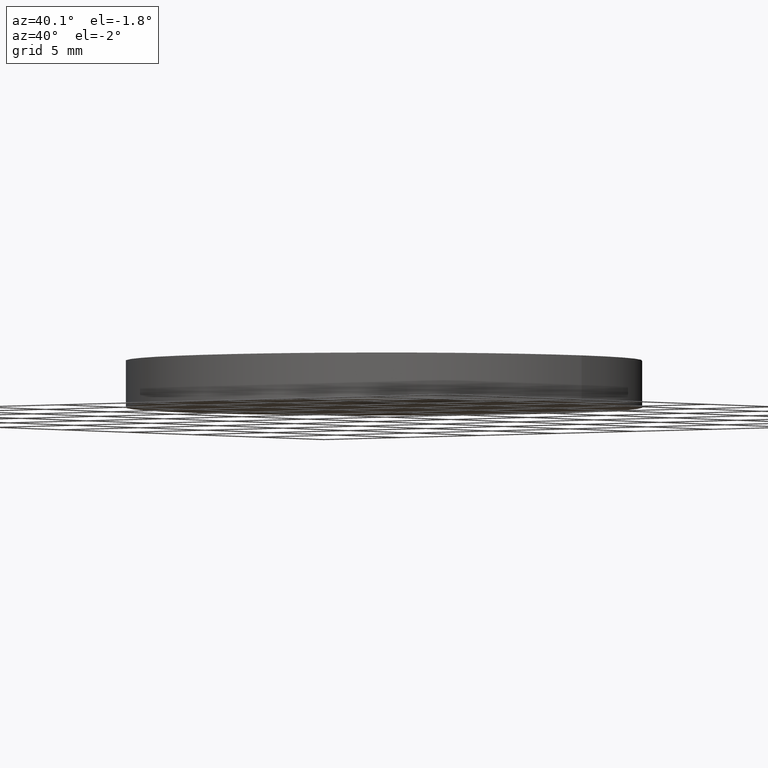
[diagram: clean part render]
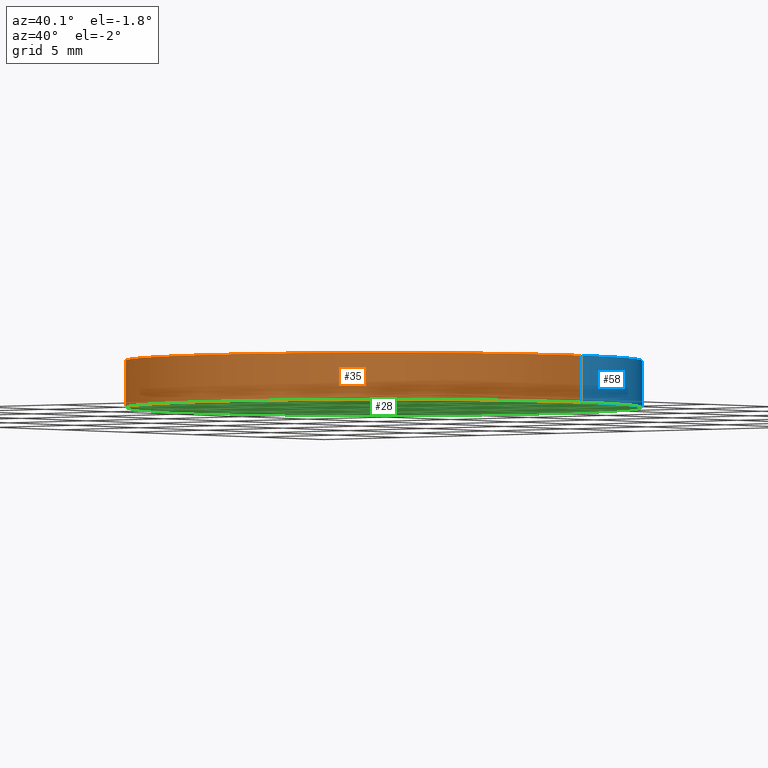
[diagram: same view with three faces highlighted in distinct colors, each labeled with its STEP entity id]
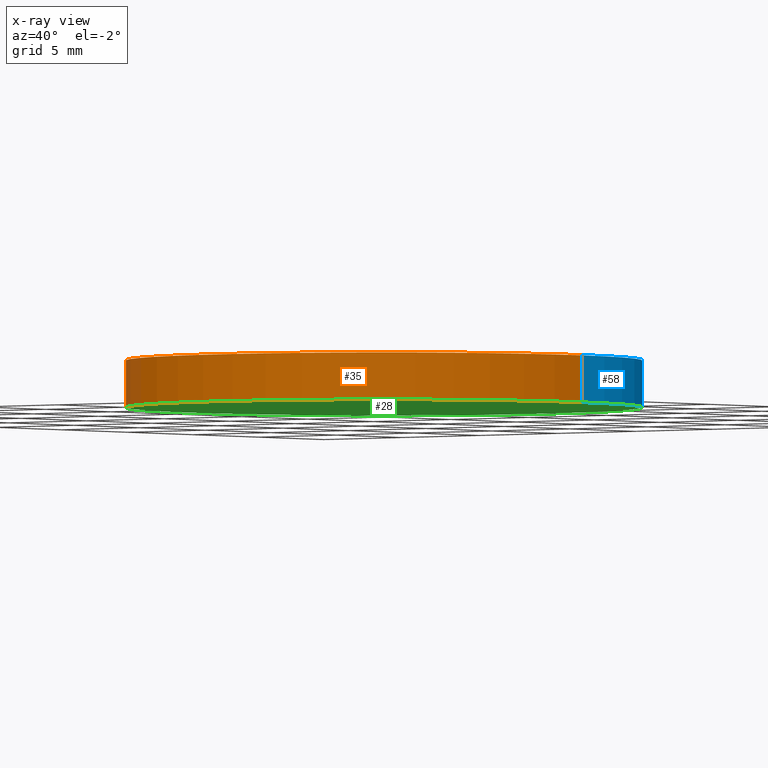
[diagram: x-ray of the same camera — body ghosted, the three highlighted faces saturated]
A machine part, auxiliary view with three faces highlighted in distinct colors.
The next image is the same camera in x-ray (body ghosted, the three faces saturated) — at least one of them is partly hidden behind the body in this view.
Their STEP definitions:

[orange] entity #35 — the highlighted cylindrical surface (partial cylindrical patch) has radius 12.7 mm, axis along (-0, -0, -1).
#1 = CIRCLE ( 'NONE', #56, 12.70000000000000300 ) ;
#2 = EDGE_CURVE ( 'NONE', #26, #101, #76, .T. ) ;
#6 = DIRECTION ( 'NONE',  ( 0.0000000000000000000, 0.0000000000000000000, 1.000000000000000000 ) ) ;
#12 = ORIENTED_EDGE ( 'NONE', *, *, #134, .F. ) ;
#14 = AXIS2_PLACEMENT_3D ( 'NONE', #38, #6, #82 ) ;
#16 = CARTESIAN_POINT ( 'NONE',  ( 95.91498394228369800, 61.56324183452659300, 2.299999999999999800 ) ) ;
#20 = DIRECTION ( 'NONE',  ( -0.0000000000000000000, -0.0000000000000000000, -1.000000000000000000 ) ) ;
#23 = VECTOR ( 'NONE', #109, 1000.000000000000000 ) ;
#25 = ORIENTED_EDGE ( 'NONE', *, *, #2, .T. ) ;
#26 = VERTEX_POINT ( 'NONE', #16 ) ;
#27 = CARTESIAN_POINT ( 'NONE',  ( 95.91498394228369800, 61.56324183452659300, 2.299999999999999800 ) ) ;
#34 = CYLINDRICAL_SURFACE ( 'NONE', #69, 12.70000000000000300 ) ;
#35 = ADVANCED_FACE ( 'NONE', ( #97 ), #34, .T. ) ;
#38 = CARTESIAN_POINT ( 'NONE',  ( 108.6149839422837000, 61.56324183452659300, 2.299999999999999800 ) ) ;
#39 = DIRECTION ( 'NONE',  ( 1.000000000000000000, 0.0000000000000000000, 0.0000000000000000000 ) ) ;
#41 = CARTESIAN_POINT ( 'NONE',  ( 95.91498394228369800, 61.56324183452659300, 0.0000000000000000000 ) ) ;
#45 = EDGE_CURVE ( 'NONE', #127, #133, #49, .T. ) ;
#49 = LINE ( 'NONE', #73, #88 ) ;
#51 = CARTESIAN_POINT ( 'NONE',  ( 108.6149839422837000, 61.56324183452659300, 2.299999999999999800 ) ) ;
#56 = AXIS2_PLACEMENT_3D ( 'NONE', #63, #83, #39 ) ;
#57 = EDGE_CURVE ( 'NONE', #101, #133, #1, .T. ) ;
#61 = DIRECTION ( 'NONE',  ( -0.0000000000000000000, -0.0000000000000000000, -1.000000000000000000 ) ) ;
#63 = CARTESIAN_POINT ( 'NONE',  ( 108.6149839422837000, 61.56324183452659300, 0.0000000000000000000 ) ) ;
#68 = CIRCLE ( 'NONE', #14, 12.70000000000000300 ) ;
#69 = AXIS2_PLACEMENT_3D ( 'NONE', #51, #20, #122 ) ;
#71 = EDGE_LOOP ( 'NONE', ( #103, #12, #25, #79 ) ) ;
#73 = CARTESIAN_POINT ( 'NONE',  ( 121.3149839422837000, 61.56324183452659300, 2.299999999999999800 ) ) ;
#76 = LINE ( 'NONE', #27, #23 ) ;
#79 = ORIENTED_EDGE ( 'NONE', *, *, #57, .T. ) ;
#82 = DIRECTION ( 'NONE',  ( 1.000000000000000000, 0.0000000000000000000, 0.0000000000000000000 ) ) ;
#83 = DIRECTION ( 'NONE',  ( 0.0000000000000000000, 0.0000000000000000000, 1.000000000000000000 ) ) ;
#85 = CARTESIAN_POINT ( 'NONE',  ( 121.3149839422837000, 61.56324183452659300, 0.0000000000000000000 ) ) ;
#88 = VECTOR ( 'NONE', #61, 1000.000000000000000 ) ;
#97 = FACE_OUTER_BOUND ( 'NONE', #71, .T. ) ;
#101 = VERTEX_POINT ( 'NONE', #41 ) ;
#103 = ORIENTED_EDGE ( 'NONE', *, *, #45, .F. ) ;
#109 = DIRECTION ( 'NONE',  ( -0.0000000000000000000, -0.0000000000000000000, -1.000000000000000000 ) ) ;
#122 = DIRECTION ( 'NONE',  ( -1.000000000000000000, 0.0000000000000000000, 0.0000000000000000000 ) ) ;
#125 = CARTESIAN_POINT ( 'NONE',  ( 121.3149839422837000, 61.56324183452659300, 2.299999999999999800 ) ) ;
#127 = VERTEX_POINT ( 'NONE', #125 ) ;
#133 = VERTEX_POINT ( 'NONE', #85 ) ;
#134 = EDGE_CURVE ( 'NONE', #26, #127, #68, .T. ) ;

[blue] entity #58 — the highlighted cylindrical surface (partial cylindrical patch) has radius 12.7 mm, axis along (-0, -0, -1).
#2 = EDGE_CURVE ( 'NONE', #26, #101, #76, .T. ) ;
#5 = CARTESIAN_POINT ( 'NONE',  ( 108.6149839422837000, 61.56324183452659300, 2.299999999999999800 ) ) ;
#9 = DIRECTION ( 'NONE',  ( -0.0000000000000000000, -0.0000000000000000000, -1.000000000000000000 ) ) ;
#11 = EDGE_CURVE ( 'NONE', #127, #26, #135, .T. ) ;
#16 = CARTESIAN_POINT ( 'NONE',  ( 95.91498394228369800, 61.56324183452659300, 2.299999999999999800 ) ) ;
#23 = VECTOR ( 'NONE', #109, 1000.000000000000000 ) ;
#26 = VERTEX_POINT ( 'NONE', #16 ) ;
#27 = CARTESIAN_POINT ( 'NONE',  ( 95.91498394228369800, 61.56324183452659300, 2.299999999999999800 ) ) ;
#41 = CARTESIAN_POINT ( 'NONE',  ( 95.91498394228369800, 61.56324183452659300, 0.0000000000000000000 ) ) ;
#45 = EDGE_CURVE ( 'NONE', #127, #133, #49, .T. ) ;
#48 = AXIS2_PLACEMENT_3D ( 'NONE', #5, #124, #86 ) ;
#49 = LINE ( 'NONE', #73, #88 ) ;
#54 = AXIS2_PLACEMENT_3D ( 'NONE', #106, #112, #114 ) ;
#58 = ADVANCED_FACE ( 'NONE', ( #120 ), #138, .T. ) ;
#61 = DIRECTION ( 'NONE',  ( -0.0000000000000000000, -0.0000000000000000000, -1.000000000000000000 ) ) ;
#73 = CARTESIAN_POINT ( 'NONE',  ( 121.3149839422837000, 61.56324183452659300, 2.299999999999999800 ) ) ;
#76 = LINE ( 'NONE', #27, #23 ) ;
#77 = ORIENTED_EDGE ( 'NONE', *, *, #11, .F. ) ;
#81 = CIRCLE ( 'NONE', #54, 12.70000000000000300 ) ;
#85 = CARTESIAN_POINT ( 'NONE',  ( 121.3149839422837000, 61.56324183452659300, 0.0000000000000000000 ) ) ;
#86 = DIRECTION ( 'NONE',  ( 1.000000000000000000, 0.0000000000000000000, 0.0000000000000000000 ) ) ;
#88 = VECTOR ( 'NONE', #61, 1000.000000000000000 ) ;
#91 = AXIS2_PLACEMENT_3D ( 'NONE', #113, #9, #136 ) ;
#92 = EDGE_LOOP ( 'NONE', ( #77, #105, #116, #130 ) ) ;
#101 = VERTEX_POINT ( 'NONE', #41 ) ;
#105 = ORIENTED_EDGE ( 'NONE', *, *, #45, .T. ) ;
#106 = CARTESIAN_POINT ( 'NONE',  ( 108.6149839422837000, 61.56324183452659300, 0.0000000000000000000 ) ) ;
#109 = DIRECTION ( 'NONE',  ( -0.0000000000000000000, -0.0000000000000000000, -1.000000000000000000 ) ) ;
#112 = DIRECTION ( 'NONE',  ( 0.0000000000000000000, 0.0000000000000000000, 1.000000000000000000 ) ) ;
#113 = CARTESIAN_POINT ( 'NONE',  ( 108.6149839422837000, 61.56324183452659300, 2.299999999999999800 ) ) ;
#114 = DIRECTION ( 'NONE',  ( 1.000000000000000000, 0.0000000000000000000, 0.0000000000000000000 ) ) ;
#116 = ORIENTED_EDGE ( 'NONE', *, *, #128, .T. ) ;
#120 = FACE_OUTER_BOUND ( 'NONE', #92, .T. ) ;
#124 = DIRECTION ( 'NONE',  ( 0.0000000000000000000, 0.0000000000000000000, 1.000000000000000000 ) ) ;
#125 = CARTESIAN_POINT ( 'NONE',  ( 121.3149839422837000, 61.56324183452659300, 2.299999999999999800 ) ) ;
#127 = VERTEX_POINT ( 'NONE', #125 ) ;
#128 = EDGE_CURVE ( 'NONE', #133, #101, #81, .T. ) ;
#130 = ORIENTED_EDGE ( 'NONE', *, *, #2, .F. ) ;
#133 = VERTEX_POINT ( 'NONE', #85 ) ;
#135 = CIRCLE ( 'NONE', #48, 12.70000000000000300 ) ;
#136 = DIRECTION ( 'NONE',  ( -1.000000000000000000, 0.0000000000000000000, 0.0000000000000000000 ) ) ;
#138 = CYLINDRICAL_SURFACE ( 'NONE', #91, 12.70000000000000300 ) ;

[green] entity #28 — the highlighted planar face has unit normal (0, 0, 1).
#1 = CIRCLE ( 'NONE', #56, 12.70000000000000300 ) ;
#8 = DIRECTION ( 'NONE',  ( 1.000000000000000000, 0.0000000000000000000, -0.0000000000000000000 ) ) ;
#19 = DIRECTION ( 'NONE',  ( 0.0000000000000000000, 0.0000000000000000000, 1.000000000000000000 ) ) ;
#28 = ADVANCED_FACE ( 'NONE', ( #62 ), #110, .F. ) ;
#33 = AXIS2_PLACEMENT_3D ( 'NONE', #36, #19, #8 ) ;
#36 = CARTESIAN_POINT ( 'NONE',  ( 108.6149839422837000, 61.56324183452659300, 0.0000000000000000000 ) ) ;
#39 = DIRECTION ( 'NONE',  ( 1.000000000000000000, 0.0000000000000000000, 0.0000000000000000000 ) ) ;
#41 = CARTESIAN_POINT ( 'NONE',  ( 95.91498394228369800, 61.56324183452659300, 0.0000000000000000000 ) ) ;
#54 = AXIS2_PLACEMENT_3D ( 'NONE', #106, #112, #114 ) ;
#55 = ORIENTED_EDGE ( 'NONE', *, *, #128, .F. ) ;
#56 = AXIS2_PLACEMENT_3D ( 'NONE', #63, #83, #39 ) ;
#57 = EDGE_CURVE ( 'NONE', #101, #133, #1, .T. ) ;
#62 = FACE_OUTER_BOUND ( 'NONE', #111, .T. ) ;
#63 = CARTESIAN_POINT ( 'NONE',  ( 108.6149839422837000, 61.56324183452659300, 0.0000000000000000000 ) ) ;
#81 = CIRCLE ( 'NONE', #54, 12.70000000000000300 ) ;
#83 = DIRECTION ( 'NONE',  ( 0.0000000000000000000, 0.0000000000000000000, 1.000000000000000000 ) ) ;
#85 = CARTESIAN_POINT ( 'NONE',  ( 121.3149839422837000, 61.56324183452659300, 0.0000000000000000000 ) ) ;
#101 = VERTEX_POINT ( 'NONE', #41 ) ;
#106 = CARTESIAN_POINT ( 'NONE',  ( 108.6149839422837000, 61.56324183452659300, 0.0000000000000000000 ) ) ;
#110 = PLANE ( 'NONE',  #33 ) ;
#111 = EDGE_LOOP ( 'NONE', ( #131, #55 ) ) ;
#112 = DIRECTION ( 'NONE',  ( 0.0000000000000000000, 0.0000000000000000000, 1.000000000000000000 ) ) ;
#114 = DIRECTION ( 'NONE',  ( 1.000000000000000000, 0.0000000000000000000, 0.0000000000000000000 ) ) ;
#128 = EDGE_CURVE ( 'NONE', #133, #101, #81, .T. ) ;
#131 = ORIENTED_EDGE ( 'NONE', *, *, #57, .F. ) ;
#133 = VERTEX_POINT ( 'NONE', #85 ) ;